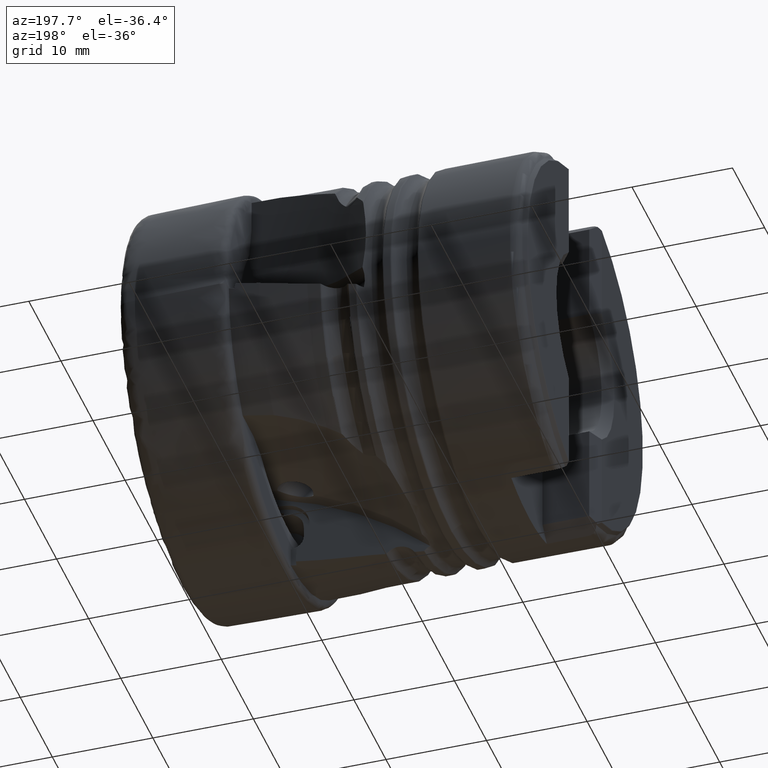
[diagram: clean part render]
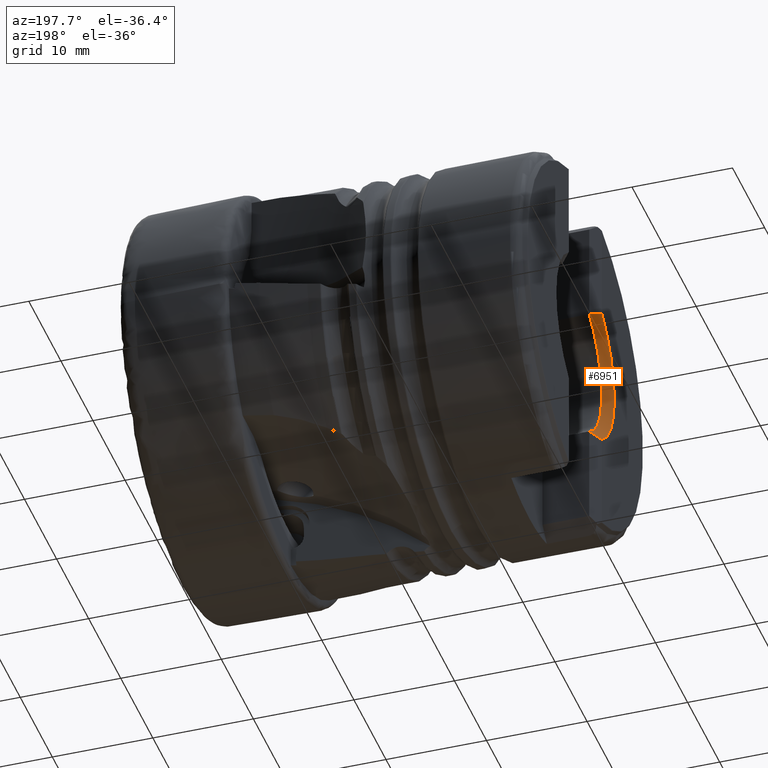
[diagram: same view with one face highlighted and labeled with its STEP entity id]
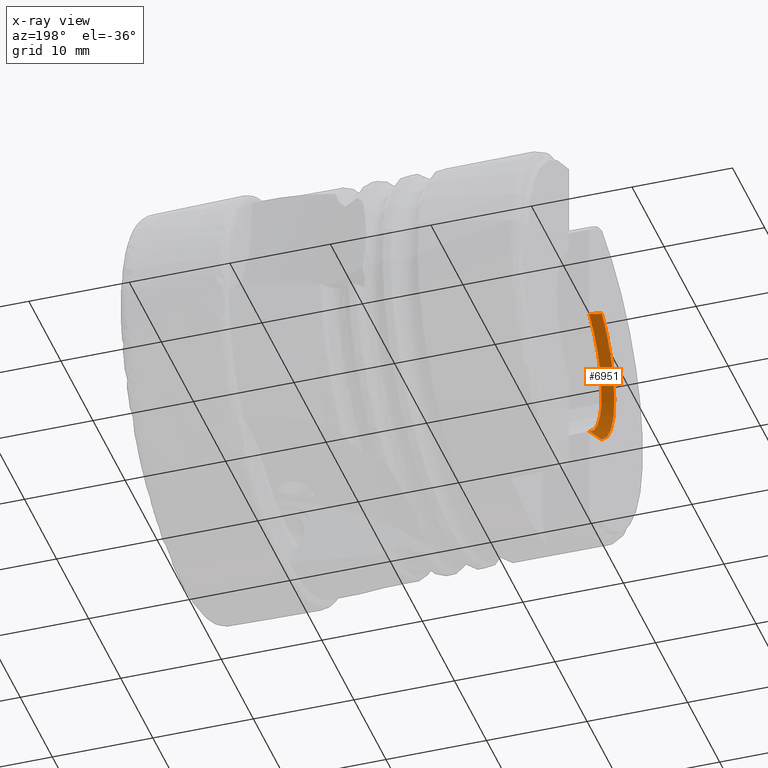
[diagram: x-ray of the same camera — body ghosted, the highlighted face saturated]
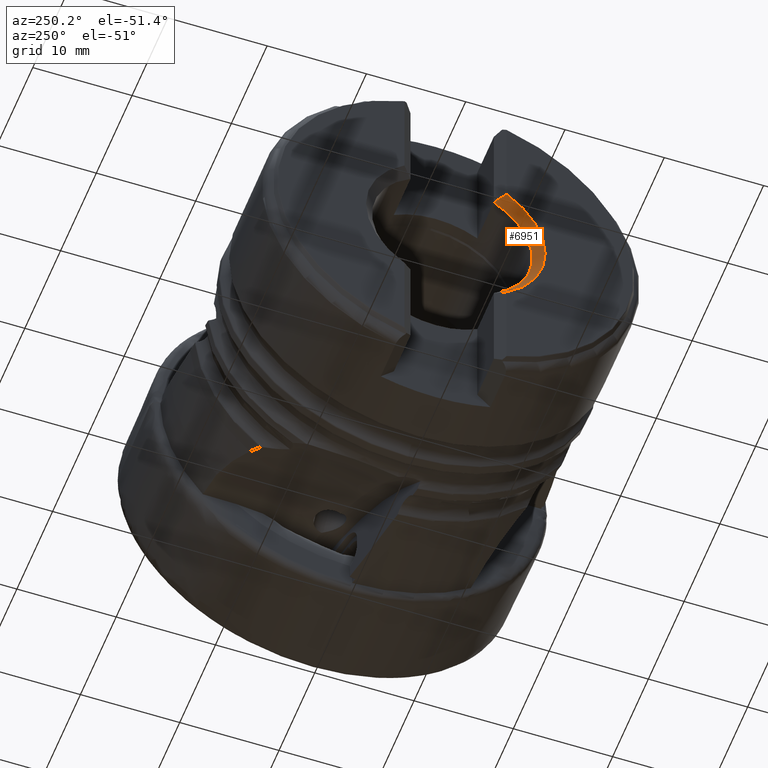
[diagram: same view with one face highlighted and labeled with its STEP entity id]
A machine part, auxiliary view. The second image highlights one B-rep face of the part: STEP entity #6951.
The next image is the same camera in x-ray: the body ghosted, the highlighted face saturated — about 0% of this face is hidden behind the body in this view.
A second angle (auxiliary view) of the same face is appended — the face is thin or edge-on in the first view.
In plain terms, the highlighted conical surface has half-angle 45 deg.
Its self-contained STEP definition (entity closure, byte-faithful):
#162 = EDGE_LOOP ( 'NONE', ( #6445, #6446, #6447, #6448 ) ) ;
#254 = B_SPLINE_CURVE_WITH_KNOTS ( 'NONE', 3,
 ( #2266, #2272, #2277, #2278 ),
 .UNSPECIFIED., .F., .F.,
 ( 4, 4 ),
 ( 7.536747141644952200E-005, 0.001514040076560035100 ),
 .UNSPECIFIED. ) ;
#344 = B_SPLINE_CURVE_WITH_KNOTS ( 'NONE', 3,
 ( #3613, #3610, #3616, #3617 ),
 .UNSPECIFIED., .F., .F.,
 ( 4, 4 ),
 ( 3.127317220692750800E-018, 0.001438672605143575700 ),
 .UNSPECIFIED. ) ;
#538 = VERTEX_POINT ( 'NONE', #5921 ) ;
#549 = VERTEX_POINT ( 'NONE', #5987 ) ;
#1207 = DIRECTION ( 'NONE',  ( 0.0000000000000000000, 0.0000000000000000000, 1.000000000000000000 ) ) ;
#1208 = CARTESIAN_POINT ( 'NONE',  ( -38.45000000000000300, 0.0000000000000000000, 0.0000000000000000000 ) ) ;
#1209 = DIRECTION ( 'NONE',  ( -1.000000000000000000, 0.0000000000000000000, 0.0000000000000000000 ) ) ;
#1285 = CARTESIAN_POINT ( 'NONE',  ( -39.40000000000001300, -5.150000000000013700, 7.411351091400264900 ) ) ;
#1286 = CARTESIAN_POINT ( 'NONE',  ( -39.40000000000001300, -5.150000000000005700, -7.411351091400272000 ) ) ;
#1358 = CARTESIAN_POINT ( 'NONE',  ( -39.40000000000001300, 0.0000000000000000000, 0.0000000000000000000 ) ) ;
#1359 = DIRECTION ( 'NONE',  ( 1.000000000000000000, -0.0000000000000000000, -0.0000000000000000000 ) ) ;
#1360 = DIRECTION ( 'NONE',  ( 0.0000000000000000000, 0.0000000000000000000, 1.000000000000000000 ) ) ;
#1475 = AXIS2_PLACEMENT_3D ( 'NONE', #1208, #1209, #1207 ) ;
#1486 = AXIS2_PLACEMENT_3D ( 'NONE', #1358, #1359, #1360 ) ;
#1634 = CIRCLE ( 'NONE', #1486, 9.025000000000003900 ) ;
#2266 = CARTESIAN_POINT ( 'NONE',  ( -39.40000000000001300, -5.150000000000013700, 7.411351091400264900 ) ) ;
#2272 = CARTESIAN_POINT ( 'NONE',  ( -39.08192301422542400, -4.831923014225422400, 7.245045608813330600 ) ) ;
#2277 = CARTESIAN_POINT ( 'NONE',  ( -38.76516499873542900, -4.515164998735424500, 7.073861048822873700 ) ) ;
#2278 = CARTESIAN_POINT ( 'NONE',  ( -38.45000000000000300, -4.200000000000000200, 6.896783670668518200 ) ) ;
#3187 = FACE_OUTER_BOUND ( 'NONE', #162, .T. ) ;
#3197 = CONICAL_SURFACE ( 'NONE', #1475, 8.074999999999995700, 0.7853981633974491700 ) ;
#3610 = CARTESIAN_POINT ( 'NONE',  ( -38.76516499873542900, -4.515164998735420100, -7.073861048822870100 ) ) ;
#3613 = CARTESIAN_POINT ( 'NONE',  ( -38.45000000000000300, -4.200000000000001100, -6.896783670668517300 ) ) ;
#3616 = CARTESIAN_POINT ( 'NONE',  ( -39.08192301422542400, -4.831923014225414400, -7.245045608813336800 ) ) ;
#3617 = CARTESIAN_POINT ( 'NONE',  ( -39.40000000000001300, -5.150000000000005700, -7.411351091400272000 ) ) ;
#3758 = EDGE_CURVE ( 'NONE', #549, #7931, #344, .T. ) ;
#3923 = EDGE_CURVE ( 'NONE', #538, #549, #7561, .T. ) ;
#4733 = AXIS2_PLACEMENT_3D ( 'NONE', #7468, #7469, #7470 ) ;
#5921 = CARTESIAN_POINT ( 'NONE',  ( -38.45000000000000300, -4.200000000000000200, 6.896783670668518200 ) ) ;
#5987 = CARTESIAN_POINT ( 'NONE',  ( -38.45000000000000300, -4.200000000000001100, -6.896783670668517300 ) ) ;
#6445 = ORIENTED_EDGE ( 'NONE', *, *, #8318, .F. ) ;
#6446 = ORIENTED_EDGE ( 'NONE', *, *, #8430, .T. ) ;
#6447 = ORIENTED_EDGE ( 'NONE', *, *, #3923, .T. ) ;
#6448 = ORIENTED_EDGE ( 'NONE', *, *, #3758, .T. ) ;
#6951 = ADVANCED_FACE ( 'NONE', ( #3187 ), #3197, .F. ) ;
#7468 = CARTESIAN_POINT ( 'NONE',  ( -38.45000000000000300, 0.0000000000000000000, 0.0000000000000000000 ) ) ;
#7469 = DIRECTION ( 'NONE',  ( 1.000000000000000000, -0.0000000000000000000, -0.0000000000000000000 ) ) ;
#7470 = DIRECTION ( 'NONE',  ( 0.0000000000000000000, 0.0000000000000000000, -1.000000000000000000 ) ) ;
#7561 = CIRCLE ( 'NONE', #4733, 8.074999999999995700 ) ;
#7930 = VERTEX_POINT ( 'NONE', #1285 ) ;
#7931 = VERTEX_POINT ( 'NONE', #1286 ) ;
#8318 = EDGE_CURVE ( 'NONE', #7930, #7931, #1634, .T. ) ;
#8430 = EDGE_CURVE ( 'NONE', #7930, #538, #254, .T. ) ;